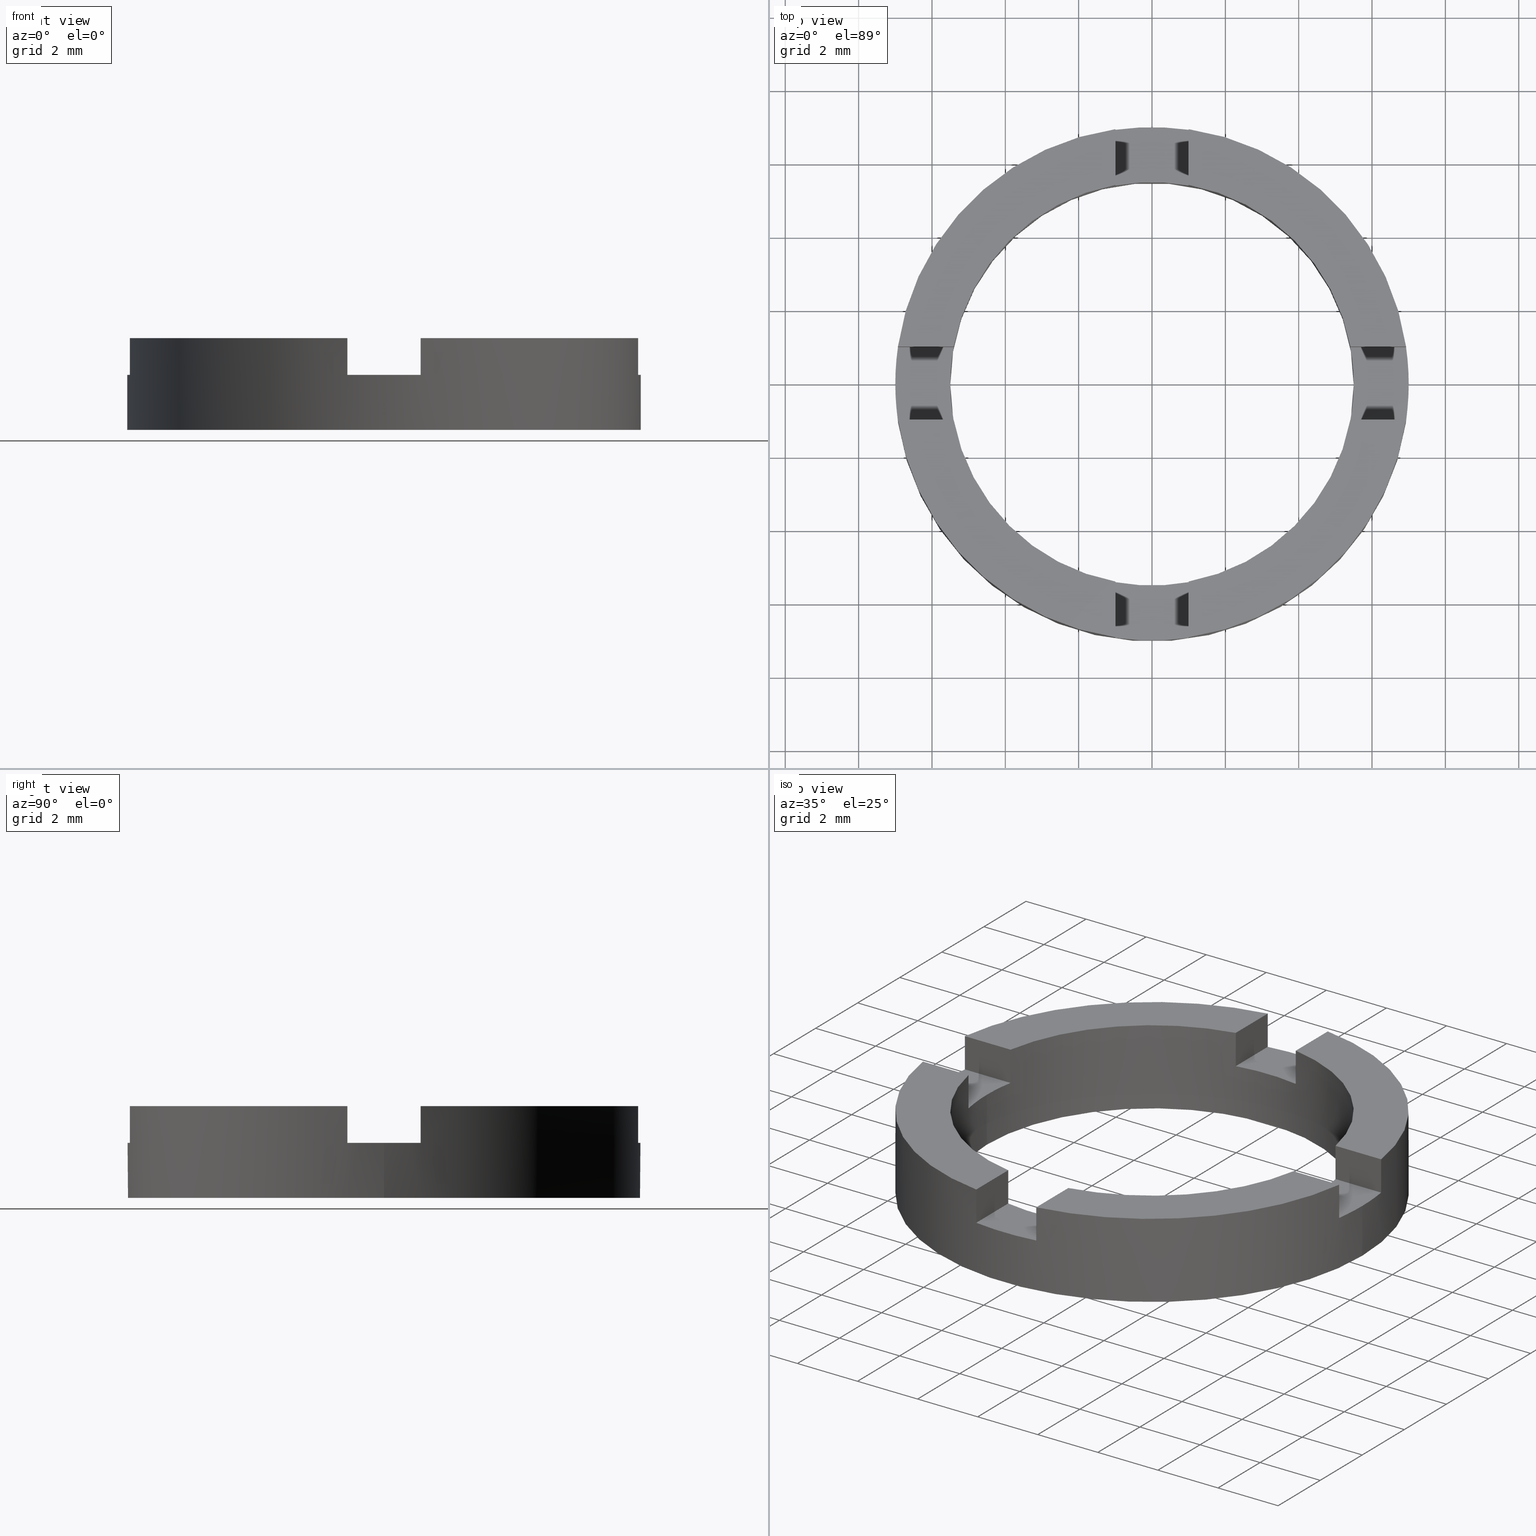
[diagram: canonical four-view strip — front | top / right | iso, engineering-drawing reading convention]
A machine part, canonical four-view strip (front | top / right | iso — engineering-drawing reading convention). The complete STEP part file that produces these views, byte-faithful:
ISO-10303-21;
HEADER;
FILE_DESCRIPTION (( 'STEP AP203' ),
    '1' );
FILE_NAME ('514036.step',
    '2024-12-26T02:31:25',
    ( 'MSI' ),
    ( '' ),
    'SwSTEP 2.0',
    'SolidWorks 2020',
    '' );
FILE_SCHEMA (( 'CONFIG_CONTROL_DESIGN' ));
ENDSEC;

DATA;
#1 = DIRECTION ( 'NONE',  ( 1.000000000000000000, 0.000000000000000000, 0.000000000000000000 ) ) ;
#2 = EDGE_CURVE ( 'NONE', #9, #123, #534, .T. ) ;
#3 = VECTOR ( 'NONE', #378, 1000.000000000000000 ) ;
#4 = LINE ( 'NONE', #207, #532 ) ;
#5 = LINE ( 'NONE', #609, #536 ) ;
#6 = CYLINDRICAL_SURFACE ( 'NONE', #716, 5.500000000000000000 ) ;
#7 = DIRECTION ( 'NONE',  ( 0.000000000000000000, 0.000000000000000000, 1.000000000000000000 ) ) ;
#8 = VECTOR ( 'NONE', #280, 1000.000000000000000 ) ;
#9 = VERTEX_POINT ( 'NONE', #593 ) ;
#10 = ORIENTED_EDGE ( 'NONE', *, *, #418, .T. ) ;
#11 = VERTEX_POINT ( 'NONE', #151 ) ;
#12 = DIRECTION ( 'NONE',  ( 1.000000000000000000, 0.000000000000000000, 0.000000000000000000 ) ) ;
#13 = ORIENTED_EDGE ( 'NONE', *, *, #612, .F. ) ;
#14 = ORIENTED_EDGE ( 'NONE', *, *, #107, .T. ) ;
#15 = DIRECTION ( 'NONE',  ( 0.000000000000000000, 1.000000000000000000, -0.000000000000000000 ) ) ;
#16 = VERTEX_POINT ( 'NONE', #54 ) ;
#17 = LINE ( 'NONE', #722, #8 ) ;
#18 = DIRECTION ( 'NONE',  ( 1.000000000000000000, 0.000000000000000000, 0.000000000000000000 ) ) ;
#19 = ORIENTED_EDGE ( 'NONE', *, *, #2, .F. ) ;
#20 = CIRCLE ( 'NONE', #777, 7.000000000000000000 ) ;
#21 = CARTESIAN_POINT ( 'NONE',  ( 5.408326913195979913, -1.000000000000021538, 2.500000000000000000 ) ) ;
#22 = CARTESIAN_POINT ( 'NONE',  ( 1.000000000000001332, 0.000000000000000000, 1.500000000000000000 ) ) ;
#23 = CIRCLE ( 'NONE', #606, 5.500000000000000000 ) ;
#24 = FACE_OUTER_BOUND ( 'NONE', #392, .T. ) ;
#25 = DIRECTION ( 'NONE',  ( 1.000000000000000000, 0.000000000000000000, 0.000000000000000000 ) ) ;
#26 = ORIENTED_EDGE ( 'NONE', *, *, #167, .T. ) ;
#27 = ORIENTED_EDGE ( 'NONE', *, *, #537, .F. ) ;
#28 = CARTESIAN_POINT ( 'NONE',  ( 0.000000000000000000, 0.000000000000000000, 2.500000000000000000 ) ) ;
#29 = DIRECTION ( 'NONE',  ( 1.000000000000000000, -3.748241796307029727E-15, 0.000000000000000000 ) ) ;
#30 = CARTESIAN_POINT ( 'NONE',  ( 0.000000000000000000, 0.000000000000000000, 1.500000000000000000 ) ) ;
#31 = ORIENTED_EDGE ( 'NONE', *, *, #324, .T. ) ;
#32 = VECTOR ( 'NONE', #368, 1000.000000000000000 ) ;
#33 = LINE ( 'NONE', #149, #284 ) ;
#34 = VECTOR ( 'NONE', #762, 1000.000000000000000 ) ;
#35 = DIRECTION ( 'NONE',  ( -3.732753193842950078E-15, -1.000000000000000000, 0.000000000000000000 ) ) ;
#36 = LINE ( 'NONE', #601, #310 ) ;
#37 = EDGE_CURVE ( 'NONE', #394, #459, #550, .T. ) ;
#38 = FACE_OUTER_BOUND ( 'NONE', #391, .T. ) ;
#39 = VECTOR ( 'NONE', #160, 1000.000000000000000 ) ;
#40 = LINE ( 'NONE', #95, #39 ) ;
#41 = DIRECTION ( 'NONE',  ( -1.000000000000000000, 0.000000000000000000, 0.000000000000000000 ) ) ;
#42 = CARTESIAN_POINT ( 'NONE',  ( 0.000000000000000000, 0.000000000000000000, 1.500000000000000000 ) ) ;
#43 = FACE_BOUND ( 'NONE', #653, .T. ) ;
#44 = CC_DESIGN_APPROVAL ( #286, ( #71 ) ) ;
#45 = CARTESIAN_POINT ( 'NONE',  ( 6.928203230275506108, -1.000000000000027089, 2.500000000000000000 ) ) ;
#46 = EDGE_CURVE ( 'NONE', #114, #11, #17, .T. ) ;
#47 = DATE_TIME_ROLE ( 'creation_date' ) ;
#48 = EDGE_CURVE ( 'NONE', #172, #459, #293, .T. ) ;
#49 = CARTESIAN_POINT ( 'NONE',  ( -5.408326913195986130, -0.9999999999999811262, 1.500000000000000000 ) ) ;
#50 = CARTESIAN_POINT ( 'NONE',  ( -0.9999999999999986677, -5.408326913195983465, 1.500000000000000000 ) ) ;
#51 = AXIS2_PLACEMENT_3D ( 'NONE', #333, #264, #125 ) ;
#52 = CARTESIAN_POINT ( 'NONE',  ( 1.000000000000001332, 0.000000000000000000, 1.500000000000000000 ) ) ;
#53 = DIRECTION ( 'NONE',  ( 1.000000000000000000, -3.732753193842950078E-15, 0.000000000000000000 ) ) ;
#54 = CARTESIAN_POINT ( 'NONE',  ( 5.500000000000000000, 6.735557395310442023E-16, 0.000000000000000000 ) ) ;
#55 = ADVANCED_FACE ( 'NONE', ( #24 ), #81, .T. ) ;
#56 = CARTESIAN_POINT ( 'NONE',  ( 5.500000000000000000, 6.735557395310442023E-16, 1.500000000000000000 ) ) ;
#57 = DIRECTION ( 'NONE',  ( 0.000000000000000000, 0.000000000000000000, 1.000000000000000000 ) ) ;
#58 = AXIS2_PLACEMENT_3D ( 'NONE', #530, #689, #344 ) ;
#59 = PLANE ( 'NONE',  #590 ) ;
#60 = CARTESIAN_POINT ( 'NONE',  ( 0.000000000000000000, 0.000000000000000000, 1.500000000000000000 ) ) ;
#61 = AXIS2_PLACEMENT_3D ( 'NONE', #111, #57, #461 ) ;
#62 = EDGE_CURVE ( 'NONE', #139, #11, #551, .T. ) ;
#63 = CARTESIAN_POINT ( 'NONE',  ( -0.9999999999999986677, 0.000000000000000000, 2.500000000000000000 ) ) ;
#64 = EDGE_CURVE ( 'NONE', #294, #677, #20, .T. ) ;
#65 = CARTESIAN_POINT ( 'NONE',  ( -0.9999999999999986677, 5.408326913195983465, 1.500000000000000000 ) ) ;
#66 = CARTESIAN_POINT ( 'NONE',  ( -5.408326913195980801, 1.000000000000019096, 2.500000000000000000 ) ) ;
#67 = EDGE_CURVE ( 'NONE', #428, #455, #298, .T. ) ;
#68 = DIRECTION ( 'NONE',  ( 0.000000000000000000, 0.000000000000000000, 1.000000000000000000 ) ) ;
#69 = APPLICATION_PROTOCOL_DEFINITION ( 'international standard', 'config_control_design', 1994, #337 ) ;
#70 = CARTESIAN_POINT ( 'NONE',  ( 0.000000000000000000, 0.000000000000000000, 2.500000000000000000 ) ) ;
#71 = PRODUCT_DEFINITION_FORMATION_WITH_SPECIFIED_SOURCE ( '�κ�', '', #769, .NOT_KNOWN. ) ;
#72 = DIRECTION ( 'NONE',  ( 1.000000000000000000, 0.000000000000000000, 0.000000000000000000 ) ) ;
#73 =( LENGTH_UNIT ( ) NAMED_UNIT ( * ) SI_UNIT ( .MILLI., .METRE. ) );
#74 = EDGE_CURVE ( 'NONE', #695, #166, #23, .T. ) ;
#75 = DIRECTION ( 'NONE',  ( -1.000000000000000000, 0.000000000000000000, 0.000000000000000000 ) ) ;
#76 = CARTESIAN_POINT ( 'NONE',  ( 0.000000000000000000, 0.000000000000000000, 2.500000000000000000 ) ) ;
#77 = DIRECTION ( 'NONE',  ( 1.000000000000000000, 0.000000000000000000, 0.000000000000000000 ) ) ;
#78 = AXIS2_PLACEMENT_3D ( 'NONE', #721, #580, #77 ) ;
#79 = EDGE_CURVE ( 'NONE', #266, #677, #33, .T. ) ;
#80 = ADVANCED_FACE ( 'NONE', ( #307 ), #591, .T. ) ;
#81 = PLANE ( 'NONE',  #402 ) ;
#82 = DIRECTION ( 'NONE',  ( 0.000000000000000000, 0.000000000000000000, 1.000000000000000000 ) ) ;
#83 = DIRECTION ( 'NONE',  ( -3.748241796307029727E-15, -1.000000000000000000, 0.000000000000000000 ) ) ;
#84 = CARTESIAN_POINT ( 'NONE',  ( -0.9999999999999986677, -5.408326913195983465, 2.500000000000000000 ) ) ;
#85 = ADVANCED_FACE ( 'NONE', ( #562 ), #407, .F. ) ;
#86 = AXIS2_PLACEMENT_3D ( 'NONE', #60, #170, #552 ) ;
#87 = DIRECTION ( 'NONE',  ( 1.000000000000000000, -5.329070518200751394E-15, 0.000000000000000000 ) ) ;
#88 = DIRECTION ( 'NONE',  ( 1.000000000000000000, 0.000000000000000000, -0.000000000000000000 ) ) ;
#89 = CARTESIAN_POINT ( 'NONE',  ( 1.000000000000001332, -5.408326913195982577, 1.500000000000000000 ) ) ;
#90 = DIRECTION ( 'NONE',  ( 0.000000000000000000, 0.000000000000000000, -1.000000000000000000 ) ) ;
#91 = CARTESIAN_POINT ( 'NONE',  ( 1.000000000000001332, -6.928203230275509661, 1.500000000000000000 ) ) ;
#92 = CARTESIAN_POINT ( 'NONE',  ( 1.000000000000001332, 0.000000000000000000, 2.500000000000000000 ) ) ;
#93 = APPROVAL ( #742, 'δָ��' ) ;
#94 = EDGE_CURVE ( 'NONE', #166, #636, #543, .T. ) ;
#95 = CARTESIAN_POINT ( 'NONE',  ( 1.000000000000001332, 0.000000000000000000, 2.500000000000000000 ) ) ;
#96 = EDGE_CURVE ( 'NONE', #690, #538, #268, .T. ) ;
#97 = ADVANCED_FACE ( 'NONE', ( #309 ), #398, .T. ) ;
#98 = ORIENTED_EDGE ( 'NONE', *, *, #598, .F. ) ;
#99 = CARTESIAN_POINT ( 'NONE',  ( -0.9999999999999986677, -6.928203230275509661, 1.500000000000000000 ) ) ;
#100 = ORIENTED_EDGE ( 'NONE', *, *, #96, .T. ) ;
#101 = ORIENTED_EDGE ( 'NONE', *, *, #351, .F. ) ;
#102 = ORIENTED_EDGE ( 'NONE', *, *, #37, .F. ) ;
#103 = ORIENTED_EDGE ( 'NONE', *, *, #449, .T. ) ;
#104 = CARTESIAN_POINT ( 'NONE',  ( 3.748241796307024994E-15, 0.9999999999999988898, 1.500000000000000000 ) ) ;
#105 = ORIENTED_EDGE ( 'NONE', *, *, #107, .F. ) ;
#106 = ORIENTED_EDGE ( 'NONE', *, *, #289, .F. ) ;
#107 = EDGE_CURVE ( 'NONE', #677, #123, #529, .T. ) ;
#108 = VERTEX_POINT ( 'NONE', #148 ) ;
#109 = ORIENTED_EDGE ( 'NONE', *, *, #702, .T. ) ;
#110 = CARTESIAN_POINT ( 'NONE',  ( 0.000000000000000000, 0.000000000000000000, 2.500000000000000000 ) ) ;
#111 = CARTESIAN_POINT ( 'NONE',  ( 0.000000000000000000, 0.000000000000000000, 2.500000000000000000 ) ) ;
#112 = ORIENTED_EDGE ( 'NONE', *, *, #464, .T. ) ;
#113 = CARTESIAN_POINT ( 'NONE',  ( 0.000000000000000000, 0.000000000000000000, 2.500000000000000000 ) ) ;
#114 = VERTEX_POINT ( 'NONE', #753 ) ;
#115 = ORIENTED_EDGE ( 'NONE', *, *, #62, .T. ) ;
#116 = ORIENTED_EDGE ( 'NONE', *, *, #347, .T. ) ;
#117 = AXIS2_PLACEMENT_3D ( 'NONE', #213, #306, #696 ) ;
#118 = ORIENTED_EDGE ( 'NONE', *, *, #656, .F. ) ;
#119 = CARTESIAN_POINT ( 'NONE',  ( 5.408326913195987018, 0.9999999999999787947, 1.500000000000000000 ) ) ;
#120 = EDGE_CURVE ( 'NONE', #421, #466, #4, .T. ) ;
#121 = EDGE_LOOP ( 'NONE', ( #676, #383, #465, #360, #197, #112 ) ) ;
#122 = ORIENTED_EDGE ( 'NONE', *, *, #600, .T. ) ;
#123 = VERTEX_POINT ( 'NONE', #84 ) ;
#124 = EDGE_LOOP ( 'NONE', ( #198, #159, #100, #370, #101, #673, #625, #189, #443, #631, #646, #374 ) ) ;
#125 = DIRECTION ( 'NONE',  ( 1.000000000000000000, 7.105427357601001859E-15, 0.000000000000000000 ) ) ;
#126 = ORIENTED_EDGE ( 'NONE', *, *, #718, .T. ) ;
#127 = VERTEX_POINT ( 'NONE', #668 ) ;
#128 = CC_DESIGN_APPROVAL ( #225, ( #444 ) ) ;
#129 = DIRECTION ( 'NONE',  ( -0.000000000000000000, -0.000000000000000000, 1.000000000000000000 ) ) ;
#130 = ORIENTED_EDGE ( 'NONE', *, *, #464, .F. ) ;
#131 = DIRECTION ( 'NONE',  ( 0.000000000000000000, 0.000000000000000000, 1.000000000000000000 ) ) ;
#132 = AXIS2_PLACEMENT_3D ( 'NONE', #571, #259, #18 ) ;
#133 = ORIENTED_EDGE ( 'NONE', *, *, #597, .F. ) ;
#134 = PLANE ( 'NONE',  #610 ) ;
#135 = ORIENTED_EDGE ( 'NONE', *, *, #781, .T. ) ;
#136 = DIRECTION ( 'NONE',  ( -0.000000000000000000, 0.000000000000000000, 1.000000000000000000 ) ) ;
#137 = ORIENTED_EDGE ( 'NONE', *, *, #246, .T. ) ;
#138 = ORIENTED_EDGE ( 'NONE', *, *, #347, .F. ) ;
#139 = VERTEX_POINT ( 'NONE', #575 ) ;
#140 = CARTESIAN_POINT ( 'NONE',  ( -0.9999999999999986677, -6.928203230275509661, 2.500000000000000000 ) ) ;
#141 = PERSON_AND_ORGANIZATION_ROLE ( 'design_supplier' ) ;
#142 = AXIS2_PLACEMENT_3D ( 'NONE', #579, #68, #574 ) ;
#143 = CARTESIAN_POINT ( 'NONE',  ( 5.500000000000000000, 6.735557395310442023E-16, 2.500000000000000000 ) ) ;
#144 = DIRECTION ( 'NONE',  ( 1.000000000000000000, 0.000000000000000000, 0.000000000000000000 ) ) ;
#145 = CC_DESIGN_DATE_AND_TIME_ASSIGNMENT ( #499, #47, ( #313 ) ) ;
#146 = CARTESIAN_POINT ( 'NONE',  ( -0.9999999999999986677, 0.000000000000000000, 1.500000000000000000 ) ) ;
#147 = APPROVAL_ROLE ( '' ) ;
#148 = CARTESIAN_POINT ( 'NONE',  ( 7.000000000000000000, 8.572527594031473190E-16, 1.500000000000000000 ) ) ;
#149 = CARTESIAN_POINT ( 'NONE',  ( -0.9999999999999986677, -6.928203230275509661, 1.500000000000000000 ) ) ;
#150 = DIRECTION ( 'NONE',  ( 1.000000000000000000, 0.000000000000000000, -0.000000000000000000 ) ) ;
#151 = CARTESIAN_POINT ( 'NONE',  ( -6.928203230275506108, 1.000000000000024869, 2.500000000000000000 ) ) ;
#152 = CARTESIAN_POINT ( 'NONE',  ( 7.000000000000000000, 8.572527594031473190E-16, 0.000000000000000000 ) ) ;
#153 = AXIS2_PLACEMENT_3D ( 'NONE', #278, #200, #451 ) ;
#154 = EDGE_CURVE ( 'NONE', #684, #294, #5, .T. ) ;
#155 = EDGE_CURVE ( 'NONE', #114, #683, #312, .T. ) ;
#156 = EDGE_LOOP ( 'NONE', ( #639, #389, #643, #367, #648, #118, #365, #649, #633, #130, #698, #179 ) ) ;
#157 = CARTESIAN_POINT ( 'NONE',  ( 5.408326913195979913, -1.000000000000021538, 1.500000000000000000 ) ) ;
#158 = ORIENTED_EDGE ( 'NONE', *, *, #622, .T. ) ;
#159 = ORIENTED_EDGE ( 'NONE', *, *, #168, .F. ) ;
#160 = DIRECTION ( 'NONE',  ( 0.000000000000000000, 1.000000000000000000, -0.000000000000000000 ) ) ;
#161 = VERTEX_POINT ( 'NONE', #276 ) ;
#162 = ORIENTED_EDGE ( 'NONE', *, *, #46, .F. ) ;
#163 = CARTESIAN_POINT ( 'NONE',  ( 0.000000000000000000, 0.000000000000000000, 1.500000000000000000 ) ) ;
#164 = ADVANCED_FACE ( 'NONE', ( #567 ), #441, .T. ) ;
#165 = CC_DESIGN_PERSON_AND_ORGANIZATION_ASSIGNMENT ( #240, #297, ( #444 ) ) ;
#166 = VERTEX_POINT ( 'NONE', #56 ) ;
#167 = EDGE_CURVE ( 'NONE', #455, #358, #40, .T. ) ;
#168 = EDGE_CURVE ( 'NONE', #690, #108, #314, .T. ) ;
#169 = ORIENTED_EDGE ( 'NONE', *, *, #597, .T. ) ;
#170 = DIRECTION ( 'NONE',  ( -0.000000000000000000, 0.000000000000000000, 1.000000000000000000 ) ) ;
#171 = ORIENTED_EDGE ( 'NONE', *, *, #246, .F. ) ;
#172 = VERTEX_POINT ( 'NONE', #89 ) ;
#173 = ORIENTED_EDGE ( 'NONE', *, *, #561, .T. ) ;
#174 = CARTESIAN_POINT ( 'NONE',  ( -5.500000000000000000, 0.000000000000000000, 1.500000000000000000 ) ) ;
#175 =( GEOMETRIC_REPRESENTATION_CONTEXT ( 3 ) GLOBAL_UNCERTAINTY_ASSIGNED_CONTEXT ( ( #547 ) ) GLOBAL_UNIT_ASSIGNED_CONTEXT ( ( #73, #202, #440 ) ) REPRESENTATION_CONTEXT ( 'NONE', 'WORKASPACE' ) );
#176 = ORIENTED_EDGE ( 'NONE', *, *, #418, .F. ) ;
#177 = DIRECTION ( 'NONE',  ( 1.000000000000000000, -3.748241796307028939E-15, 0.000000000000000000 ) ) ;
#178 = VERTEX_POINT ( 'NONE', #152 ) ;
#179 = ORIENTED_EDGE ( 'NONE', *, *, #781, .F. ) ;
#180 = ORIENTED_EDGE ( 'NONE', *, *, #539, .T. ) ;
#181 = DIRECTION ( 'NONE',  ( 1.000000000000000000, 0.000000000000000000, 0.000000000000000000 ) ) ;
#182 = CARTESIAN_POINT ( 'NONE',  ( 0.000000000000000000, 0.000000000000000000, 1.500000000000000000 ) ) ;
#183 = AXIS2_PLACEMENT_3D ( 'NONE', #30, #136, #735 ) ;
#184 = DIRECTION ( 'NONE',  ( 0.000000000000000000, 0.000000000000000000, 1.000000000000000000 ) ) ;
#185 = PLANE ( 'NONE',  #448 ) ;
#186 = CARTESIAN_POINT ( 'NONE',  ( 7.000000000000000000, 8.572527594031473190E-16, 2.500000000000000000 ) ) ;
#187 = ORIENTED_EDGE ( 'NONE', *, *, #231, .T. ) ;
#188 = ORIENTED_EDGE ( 'NONE', *, *, #692, .F. ) ;
#189 = ORIENTED_EDGE ( 'NONE', *, *, #64, .F. ) ;
#190 = AXIS2_PLACEMENT_3D ( 'NONE', #52, #764, #90 ) ;
#191 = ORIENTED_EDGE ( 'NONE', *, *, #67, .T. ) ;
#192 = EDGE_CURVE ( 'NONE', #651, #358, #569, .T. ) ;
#193 = EDGE_CURVE ( 'NONE', #695, #710, #570, .T. ) ;
#194 = DIRECTION ( 'NONE',  ( 0.000000000000000000, -0.000000000000000000, -1.000000000000000000 ) ) ;
#195 = ORIENTED_EDGE ( 'NONE', *, *, #303, .T. ) ;
#196 = SECURITY_CLASSIFICATION_LEVEL ( 'unclassified' ) ;
#197 = ORIENTED_EDGE ( 'NONE', *, *, #598, .T. ) ;
#198 = ORIENTED_EDGE ( 'NONE', *, *, #622, .F. ) ;
#199 = ORIENTED_EDGE ( 'NONE', *, *, #324, .F. ) ;
#200 = DIRECTION ( 'NONE',  ( 0.000000000000000000, 0.000000000000000000, 1.000000000000000000 ) ) ;
#201 = ORIENTED_EDGE ( 'NONE', *, *, #192, .T. ) ;
#202 =( NAMED_UNIT ( * ) PLANE_ANGLE_UNIT ( ) SI_UNIT ( $, .RADIAN. ) );
#203 = ADVANCED_FACE ( 'NONE', ( #316, #43 ), #654, .F. ) ;
#204 = EDGE_CURVE ( 'NONE', #294, #632, #36, .T. ) ;
#205 = DIRECTION ( 'NONE',  ( 1.000000000000000000, 0.000000000000000000, -0.000000000000000000 ) ) ;
#206 = PERSON_AND_ORGANIZATION_ROLE ( 'creator' ) ;
#207 = CARTESIAN_POINT ( 'NONE',  ( -5.408326913195980801, 1.000000000000019096, 1.500000000000000000 ) ) ;
#208 = ADVANCED_FACE ( 'NONE', ( #565 ), #59, .F. ) ;
#209 = CIRCLE ( 'NONE', #526, 7.000000000000000000 ) ;
#210 = LINE ( 'NONE', #186, #508 ) ;
#211 = VECTOR ( 'NONE', #308, 1000.000000000000000 ) ;
#212 = LINE ( 'NONE', #714, #731 ) ;
#213 = CARTESIAN_POINT ( 'NONE',  ( -0.9999999999999986677, 0.000000000000000000, 1.500000000000000000 ) ) ;
#214 = APPROVAL_PERSON_ORGANIZATION ( #251, #286, #147 ) ;
#215 = DIRECTION ( 'NONE',  ( 1.000000000000000000, 0.000000000000000000, 0.000000000000000000 ) ) ;
#216 = FACE_OUTER_BOUND ( 'NONE', #124, .T. ) ;
#217 = ADVANCED_FACE ( 'NONE', ( #38 ), #6, .F. ) ;
#218 = LINE ( 'NONE', #420, #512 ) ;
#219 = VECTOR ( 'NONE', #241, 1000.000000000000000 ) ;
#220 = LOCAL_TIME ( 10, 31, 25.00000000000000000, #226 ) ;
#221 = CARTESIAN_POINT ( 'NONE',  ( 6.928203230275513214, 0.9999999999999729106, 1.500000000000000000 ) ) ;
#222 = LINE ( 'NONE', #49, #219 ) ;
#223 = LOCAL_TIME ( 10, 31, 25.00000000000000000, #754 ) ;
#224 = CIRCLE ( 'NONE', #645, 5.500000000000000000 ) ;
#225 = APPROVAL ( #584, 'δָ��' ) ;
#226 = COORDINATED_UNIVERSAL_TIME_OFFSET ( 8, 0, .AHEAD. ) ;
#227 = FACE_OUTER_BOUND ( 'NONE', #640, .T. ) ;
#228 = CARTESIAN_POINT ( 'NONE',  ( 0.000000000000000000, 0.000000000000000000, 1.500000000000000000 ) ) ;
#229 = AXIS2_PLACEMENT_3D ( 'NONE', #311, #410, #700 ) ;
#230 = VECTOR ( 'NONE', #608, 1000.000000000000000 ) ;
#231 = EDGE_CURVE ( 'NONE', #161, #651, #255, .T. ) ;
#232 = LINE ( 'NONE', #342, #752 ) ;
#233 = CARTESIAN_POINT ( 'NONE',  ( 1.000000000000001332, 5.408326913195982577, 1.500000000000000000 ) ) ;
#234 = LINE ( 'NONE', #63, #236 ) ;
#235 = COORDINATED_UNIVERSAL_TIME_OFFSET ( 8, 0, .AHEAD. ) ;
#236 = VECTOR ( 'NONE', #663, 1000.000000000000000 ) ;
#237 = CALENDAR_DATE ( 2024, 26, 12 ) ;
#238 = FACE_OUTER_BOUND ( 'NONE', #406, .T. ) ;
#239 = LINE ( 'NONE', #157, #498 ) ;
#240 = PERSON_AND_ORGANIZATION ( #416, #494 ) ;
#241 = DIRECTION ( 'NONE',  ( -0.000000000000000000, -0.000000000000000000, 1.000000000000000000 ) ) ;
#242 = LINE ( 'NONE', #104, #477 ) ;
#243 = LINE ( 'NONE', #720, #476 ) ;
#244 = AXIS2_PLACEMENT_3D ( 'NONE', #620, #629, #528 ) ;
#245 = CALENDAR_DATE ( 2024, 26, 12 ) ;
#246 = EDGE_CURVE ( 'NONE', #430, #16, #778, .T. ) ;
#247 = VECTOR ( 'NONE', #291, 1000.000000000000000 ) ;
#248 = DIRECTION ( 'NONE',  ( 1.000000000000000000, 0.000000000000000000, 0.000000000000000000 ) ) ;
#249 = CARTESIAN_POINT ( 'NONE',  ( -0.9999999999999986677, 5.408326913195983465, 1.500000000000000000 ) ) ;
#250 = FACE_OUTER_BOUND ( 'NONE', #304, .T. ) ;
#251 = PERSON_AND_ORGANIZATION ( #416, #494 ) ;
#252 = CARTESIAN_POINT ( 'NONE',  ( 6.928203230275513214, 0.9999999999999729106, 2.500000000000000000 ) ) ;
#253 = LINE ( 'NONE', #697, #515 ) ;
#254 = DATE_AND_TIME ( #256, #479 ) ;
#255 = LINE ( 'NONE', #221, #520 ) ;
#256 = CALENDAR_DATE ( 2024, 26, 12 ) ;
#257 = CIRCLE ( 'NONE', #691, 7.000000000000000000 ) ;
#258 = APPROVAL_DATE_TIME ( #505, #225 ) ;
#259 = DIRECTION ( 'NONE',  ( 0.000000000000000000, -0.000000000000000000, -1.000000000000000000 ) ) ;
#260 = VECTOR ( 'NONE', #546, 1000.000000000000000 ) ;
#261 = CC_DESIGN_APPROVAL ( #93, ( #313 ) ) ;
#262 = AXIS2_PLACEMENT_3D ( 'NONE', #363, #431, #322 ) ;
#263 = PLANE ( 'NONE',  #319 ) ;
#264 = DIRECTION ( 'NONE',  ( 0.000000000000000000, -0.000000000000000000, -1.000000000000000000 ) ) ;
#265 = PERSON_AND_ORGANIZATION_ROLE ( 'design_owner' ) ;
#266 = VERTEX_POINT ( 'NONE', #99 ) ;
#267 = CARTESIAN_POINT ( 'NONE',  ( 0.000000000000000000, 0.000000000000000000, 1.500000000000000000 ) ) ;
#268 = LINE ( 'NONE', #687, #34 ) ;
#269 = DIRECTION ( 'NONE',  ( 0.000000000000000000, 0.000000000000000000, 1.000000000000000000 ) ) ;
#270 = AXIS2_PLACEMENT_3D ( 'NONE', #587, #82, #205 ) ;
#271 = ORIENTED_EDGE ( 'NONE', *, *, #484, .F. ) ;
#272 = DIRECTION ( 'NONE',  ( -0.000000000000000000, -0.000000000000000000, -1.000000000000000000 ) ) ;
#273 = CARTESIAN_POINT ( 'NONE',  ( 5.408326913195987018, 0.9999999999999787947, 2.500000000000000000 ) ) ;
#274 = VECTOR ( 'NONE', #682, 1000.000000000000000 ) ;
#275 = FACE_OUTER_BOUND ( 'NONE', #300, .T. ) ;
#276 = CARTESIAN_POINT ( 'NONE',  ( 6.928203230275513214, 0.9999999999999729106, 1.500000000000000000 ) ) ;
#277 = EDGE_LOOP ( 'NONE', ( #26, #199, #188, #191 ) ) ;
#278 = CARTESIAN_POINT ( 'NONE',  ( 0.000000000000000000, 0.000000000000000000, 2.500000000000000000 ) ) ;
#279 = ORIENTED_EDGE ( 'NONE', *, *, #727, .T. ) ;
#280 = DIRECTION ( 'NONE',  ( -0.000000000000000000, -0.000000000000000000, 1.000000000000000000 ) ) ;
#281 = VECTOR ( 'NONE', #386, 1000.000000000000000 ) ;
#282 = CARTESIAN_POINT ( 'NONE',  ( 3.748241796307024994E-15, 0.9999999999999988898, 2.500000000000000000 ) ) ;
#283 = DIRECTION ( 'NONE',  ( 1.000000000000000000, -3.748241796307028939E-15, 0.000000000000000000 ) ) ;
#284 = VECTOR ( 'NONE', #634, 1000.000000000000000 ) ;
#285 = VECTOR ( 'NONE', #129, 1000.000000000000000 ) ;
#286 = APPROVAL ( #339, 'δָ��' ) ;
#287 = ORIENTED_EDGE ( 'NONE', *, *, #454, .T. ) ;
#288 = AXIS2_PLACEMENT_3D ( 'NONE', #382, #372, #144 ) ;
#289 = EDGE_CURVE ( 'NONE', #683, #657, #253, .T. ) ;
#290 = ORIENTED_EDGE ( 'NONE', *, *, #204, .T. ) ;
#291 = DIRECTION ( 'NONE',  ( -0.000000000000000000, -0.000000000000000000, -1.000000000000000000 ) ) ;
#292 = DIRECTION ( 'NONE',  ( -0.000000000000000000, 0.000000000000000000, 1.000000000000000000 ) ) ;
#293 = LINE ( 'NONE', #335, #3 ) ;
#294 = VERTEX_POINT ( 'NONE', #417 ) ;
#295 = EDGE_LOOP ( 'NONE', ( #271, #122, #115, #463 ) ) ;
#296 = ORIENTED_EDGE ( 'NONE', *, *, #155, .F. ) ;
#297 = PERSON_AND_ORGANIZATION_ROLE ( 'classification_officer' ) ;
#298 = LINE ( 'NONE', #332, #32 ) ;
#299 = DIRECTION ( 'NONE',  ( -0.000000000000000000, -0.000000000000000000, 1.000000000000000000 ) ) ;
#300 = EDGE_LOOP ( 'NONE', ( #708, #302, #102, #621 ) ) ;
#301 = EDGE_CURVE ( 'NONE', #657, #178, #257, .T. ) ;
#302 = ORIENTED_EDGE ( 'NONE', *, *, #702, .F. ) ;
#303 = EDGE_CURVE ( 'NONE', #636, #690, #535, .T. ) ;
#304 = EDGE_LOOP ( 'NONE', ( #460, #162, #103, #362 ) ) ;
#305 = CLOSED_SHELL ( 'NONE', ( #217, #542, #97, #531, #703, #317, #596, #627, #203, #467, #760, #458, #745, #208, #164, #635, #589, #699, #80, #85, #55 ) ) ;
#306 = DIRECTION ( 'NONE',  ( 1.000000000000000000, 0.000000000000000000, 0.000000000000000000 ) ) ;
#307 = FACE_OUTER_BOUND ( 'NONE', #468, .T. ) ;
#308 = DIRECTION ( 'NONE',  ( -0.000000000000000000, -0.000000000000000000, 1.000000000000000000 ) ) ;
#309 = FACE_OUTER_BOUND ( 'NONE', #295, .T. ) ;
#310 = VECTOR ( 'NONE', #53, 1000.000000000000000 ) ;
#311 = CARTESIAN_POINT ( 'NONE',  ( 0.000000000000000000, 0.000000000000000000, 1.500000000000000000 ) ) ;
#312 = CIRCLE ( 'NONE', #183, 7.000000000000000000 ) ;
#313 = PRODUCT_DEFINITION ( 'δ֪', '', #71, #507 ) ;
#314 = CIRCLE ( 'NONE', #346, 7.000000000000000000 ) ;
#315 = DIRECTION ( 'NONE',  ( -0.000000000000000000, -0.000000000000000000, 1.000000000000000000 ) ) ;
#316 = FACE_OUTER_BOUND ( 'NONE', #527, .T. ) ;
#317 = ADVANCED_FACE ( 'NONE', ( #275 ), #320, .T. ) ;
#318 = CARTESIAN_POINT ( 'NONE',  ( -5.500000000000000000, 0.000000000000000000, 0.000000000000000000 ) ) ;
#319 = AXIS2_PLACEMENT_3D ( 'NONE', #328, #12, #712 ) ;
#320 = PLANE ( 'NONE',  #482 ) ;
#321 = DIRECTION ( 'NONE',  ( 1.000000000000000000, -3.732753193842950078E-15, 0.000000000000000000 ) ) ;
#322 = DIRECTION ( 'NONE',  ( 1.000000000000000000, 7.993605777301125513E-15, 0.000000000000000000 ) ) ;
#323 = AXIS2_PLACEMENT_3D ( 'NONE', #445, #272, #724 ) ;
#324 = EDGE_CURVE ( 'NONE', #709, #358, #782, .T. ) ;
#325 = DIRECTION ( 'NONE',  ( 0.000000000000000000, 0.000000000000000000, 1.000000000000000000 ) ) ;
#326 = CARTESIAN_POINT ( 'NONE',  ( 1.000000000000001332, -5.408326913195982577, 2.500000000000000000 ) ) ;
#327 = DIRECTION ( 'NONE',  ( -0.000000000000000000, -0.000000000000000000, -1.000000000000000000 ) ) ;
#328 = CARTESIAN_POINT ( 'NONE',  ( -0.9999999999999986677, 0.000000000000000000, 1.500000000000000000 ) ) ;
#329 = CARTESIAN_POINT ( 'NONE',  ( 3.748241796307024994E-15, 0.9999999999999988898, 1.500000000000000000 ) ) ;
#330 = DIRECTION ( 'NONE',  ( 0.000000000000000000, 0.000000000000000000, 1.000000000000000000 ) ) ;
#331 = DIRECTION ( 'NONE',  ( -0.000000000000000000, 0.000000000000000000, 1.000000000000000000 ) ) ;
#332 = CARTESIAN_POINT ( 'NONE',  ( 1.000000000000001332, 5.408326913195982577, 1.500000000000000000 ) ) ;
#333 = CARTESIAN_POINT ( 'NONE',  ( 0.000000000000000000, 0.000000000000000000, 1.500000000000000000 ) ) ;
#334 = PLANE ( 'NONE',  #758 ) ;
#335 = CARTESIAN_POINT ( 'NONE',  ( 1.000000000000001332, -5.408326913195982577, 1.500000000000000000 ) ) ;
#336 = CARTESIAN_POINT ( 'NONE',  ( -7.000000000000000000, 0.000000000000000000, 0.000000000000000000 ) ) ;
#337 = APPLICATION_CONTEXT ( 'configuration controlled 3d designs of mechanical parts and assemblies' ) ;
#338 = CARTESIAN_POINT ( 'NONE',  ( 0.000000000000000000, 0.000000000000000000, 0.000000000000000000 ) ) ;
#339 = APPROVAL_STATUS ( 'not_yet_approved' ) ;
#340 = PRODUCT_RELATED_PRODUCT_CATEGORY ( 'detail', '', ( #769 ) ) ;
#341 = AXIS2_PLACEMENT_3D ( 'NONE', #666, #194, #72 ) ;
#342 = CARTESIAN_POINT ( 'NONE',  ( -0.9999999999999986677, 0.000000000000000000, 1.500000000000000000 ) ) ;
#343 = APPROVAL_ROLE ( '' ) ;
#344 = DIRECTION ( 'NONE',  ( 1.000000000000000000, 0.000000000000000000, 0.000000000000000000 ) ) ;
#345 = DIRECTION ( 'NONE',  ( -3.732753193842950078E-15, -1.000000000000000000, 0.000000000000000000 ) ) ;
#346 = AXIS2_PLACEMENT_3D ( 'NONE', #228, #349, #414 ) ;
#347 = EDGE_CURVE ( 'NONE', #710, #651, #736, .T. ) ;
#348 = CARTESIAN_POINT ( 'NONE',  ( 3.748241796307024994E-15, 0.9999999999999988898, 2.500000000000000000 ) ) ;
#349 = DIRECTION ( 'NONE',  ( -0.000000000000000000, 0.000000000000000000, 1.000000000000000000 ) ) ;
#350 = CARTESIAN_POINT ( 'NONE',  ( 0.000000000000000000, 0.000000000000000000, 2.500000000000000000 ) ) ;
#351 = EDGE_CURVE ( 'NONE', #437, #394, #485, .T. ) ;
#352 = DIRECTION ( 'NONE',  ( 1.000000000000000000, -3.748241796307028939E-15, 0.000000000000000000 ) ) ;
#353 = AXIS2_PLACEMENT_3D ( 'NONE', #76, #395, #41 ) ;
#354 = CARTESIAN_POINT ( 'NONE',  ( 5.408326913195987018, 0.9999999999999787947, 1.500000000000000000 ) ) ;
#355 = DIRECTION ( 'NONE',  ( 1.000000000000000000, 0.000000000000000000, 0.000000000000000000 ) ) ;
#356 = CARTESIAN_POINT ( 'NONE',  ( -5.408326913195987018, -0.9999999999999813483, 1.500000000000000000 ) ) ;
#357 = DIRECTION ( 'NONE',  ( 1.000000000000000000, -3.732753193842950078E-15, 0.000000000000000000 ) ) ;
#358 = VERTEX_POINT ( 'NONE', #766 ) ;
#359 = AXIS2_PLACEMENT_3D ( 'NONE', #513, #576, #581 ) ;
#360 = ORIENTED_EDGE ( 'NONE', *, *, #780, .T. ) ;
#361 = ORIENTED_EDGE ( 'NONE', *, *, #204, .F. ) ;
#362 = ORIENTED_EDGE ( 'NONE', *, *, #120, .T. ) ;
#363 = CARTESIAN_POINT ( 'NONE',  ( 0.000000000000000000, 0.000000000000000000, 1.500000000000000000 ) ) ;
#364 = CIRCLE ( 'NONE', #595, 7.000000000000000000 ) ;
#365 = ORIENTED_EDGE ( 'NONE', *, *, #680, .T. ) ;
#366 = FACE_OUTER_BOUND ( 'NONE', #672, .T. ) ;
#367 = ORIENTED_EDGE ( 'NONE', *, *, #665, .T. ) ;
#368 = DIRECTION ( 'NONE',  ( -0.000000000000000000, -0.000000000000000000, 1.000000000000000000 ) ) ;
#369 = ORIENTED_EDGE ( 'NONE', *, *, #612, .T. ) ;
#370 = ORIENTED_EDGE ( 'NONE', *, *, #376, .F. ) ;
#371 = CARTESIAN_POINT ( 'NONE',  ( -5.408326913195986130, -0.9999999999999811262, 2.500000000000000000 ) ) ;
#372 = DIRECTION ( 'NONE',  ( 0.000000000000000000, 0.000000000000000000, 1.000000000000000000 ) ) ;
#373 = AXIS2_PLACEMENT_3D ( 'NONE', #329, #614, #493 ) ;
#374 = ORIENTED_EDGE ( 'NONE', *, *, #301, .T. ) ;
#375 = EDGE_CURVE ( 'NONE', #108, #161, #739, .T. ) ;
#376 = EDGE_CURVE ( 'NONE', #394, #538, #504, .T. ) ;
#377 = ORIENTED_EDGE ( 'NONE', *, *, #656, .T. ) ;
#378 = DIRECTION ( 'NONE',  ( -0.000000000000000000, -0.000000000000000000, 1.000000000000000000 ) ) ;
#379 = ORIENTED_EDGE ( 'NONE', *, *, #46, .T. ) ;
#380 = ORIENTED_EDGE ( 'NONE', *, *, #168, .T. ) ;
#381 = CARTESIAN_POINT ( 'NONE',  ( -7.000000000000000000, 0.000000000000000000, 1.500000000000000000 ) ) ;
#382 = CARTESIAN_POINT ( 'NONE',  ( 0.000000000000000000, 0.000000000000000000, 0.000000000000000000 ) ) ;
#383 = ORIENTED_EDGE ( 'NONE', *, *, #155, .T. ) ;
#384 = ORIENTED_EDGE ( 'NONE', *, *, #658, .T. ) ;
#385 = VECTOR ( 'NONE', #283, 1000.000000000000000 ) ;
#386 = DIRECTION ( 'NONE',  ( 0.000000000000000000, 1.000000000000000000, -0.000000000000000000 ) ) ;
#387 = ORIENTED_EDGE ( 'NONE', *, *, #301, .F. ) ;
#388 = CIRCLE ( 'NONE', #359, 5.500000000000000000 ) ;
#389 = ORIENTED_EDGE ( 'NONE', *, *, #74, .F. ) ;
#390 = DIRECTION ( 'NONE',  ( 0.000000000000000000, 0.000000000000000000, 1.000000000000000000 ) ) ;
#391 = EDGE_LOOP ( 'NONE', ( #435, #173, #171, #409, #98, #544, #169, #19, #13, #545, #109, #176 ) ) ;
#392 = EDGE_LOOP ( 'NONE', ( #27, #377, #641, #279 ) ) ;
#393 = VERTEX_POINT ( 'NONE', #174 ) ;
#394 = VERTEX_POINT ( 'NONE', #471 ) ;
#395 = DIRECTION ( 'NONE',  ( -0.000000000000000000, -0.000000000000000000, -1.000000000000000000 ) ) ;
#396 = APPLICATION_PROTOCOL_DEFINITION ( 'international standard', 'config_control_design', 1994, #733 ) ;
#397 = MANIFOLD_SOLID_BREP ( '�г�-����1', #305 ) ;
#398 = PLANE ( 'NONE',  #244 ) ;
#399 = EDGE_LOOP ( 'NONE', ( #425, #679, #628, #655 ) ) ;
#400 = LINE ( 'NONE', #667, #385 ) ;
#401 = VERTEX_POINT ( 'NONE', #249 ) ;
#402 = AXIS2_PLACEMENT_3D ( 'NONE', #514, #450, #582 ) ;
#403 = ORIENTED_EDGE ( 'NONE', *, *, #193, .F. ) ;
#404 = EDGE_CURVE ( 'NONE', #688, #632, #222, .T. ) ;
#405 = ORIENTED_EDGE ( 'NONE', *, *, #79, .F. ) ;
#406 = EDGE_LOOP ( 'NONE', ( #439, #650, #442, #369 ) ) ;
#407 = PLANE ( 'NONE',  #190 ) ;
#408 = CARTESIAN_POINT ( 'NONE',  ( 0.000000000000000000, 0.000000000000000000, 0.000000000000000000 ) ) ;
#409 = ORIENTED_EDGE ( 'NONE', *, *, #613, .F. ) ;
#410 = DIRECTION ( 'NONE',  ( -0.000000000000000000, 0.000000000000000000, 1.000000000000000000 ) ) ;
#411 = AXIS2_PLACEMENT_3D ( 'NONE', #408, #540, #215 ) ;
#412 = EDGE_CURVE ( 'NONE', #266, #437, #761, .T. ) ;
#413 = EDGE_CURVE ( 'NONE', #437, #172, #746, .T. ) ;
#414 = DIRECTION ( 'NONE',  ( 1.000000000000000000, 0.000000000000000000, 0.000000000000000000 ) ) ;
#415 = DIRECTION ( 'NONE',  ( 1.000000000000000000, -3.748241796307028939E-15, 0.000000000000000000 ) ) ;
#416 = PERSON ( 'δָ��', 'δָ��', 'δָ��', ('δָ��'), ('δָ��'), ('δָ��') ) ;
#417 = CARTESIAN_POINT ( 'NONE',  ( -6.928203230275513214, -0.9999999999999754641, 2.500000000000000000 ) ) ;
#418 = EDGE_CURVE ( 'NONE', #636, #644, #239, .T. ) ;
#419 = DIRECTION ( 'NONE',  ( -0.000000000000000000, -0.000000000000000000, -1.000000000000000000 ) ) ;
#420 = CARTESIAN_POINT ( 'NONE',  ( -0.9999999999999986677, 6.928203230275509661, 1.500000000000000000 ) ) ;
#421 = VERTEX_POINT ( 'NONE', #701 ) ;
#422 = CC_DESIGN_PERSON_AND_ORGANIZATION_ASSIGNMENT ( #518, #265, ( #769 ) ) ;
#423 = CARTESIAN_POINT ( 'NONE',  ( 1.000000000000001332, 5.408326913195982577, 2.500000000000000000 ) ) ;
#424 = AXIS2_PLACEMENT_3D ( 'NONE', #163, #592, #355 ) ;
#425 = ORIENTED_EDGE ( 'NONE', *, *, #37, .T. ) ;
#426 = DIRECTION ( 'NONE',  ( 1.000000000000000000, -3.732753193842950078E-15, 0.000000000000000000 ) ) ;
#427 = EDGE_LOOP ( 'NONE', ( #105, #405, #180, #706 ) ) ;
#428 = VERTEX_POINT ( 'NONE', #233 ) ;
#429 = EDGE_LOOP ( 'NONE', ( #138, #403, #126, #187 ) ) ;
#430 = VERTEX_POINT ( 'NONE', #318 ) ;
#431 = DIRECTION ( 'NONE',  ( 0.000000000000000000, -0.000000000000000000, -1.000000000000000000 ) ) ;
#432 = PLANE ( 'NONE',  #572 ) ;
#433 = ORIENTED_EDGE ( 'NONE', *, *, #586, .T. ) ;
#434 = AXIS2_PLACEMENT_3D ( 'NONE', #522, #269, #25 ) ;
#435 = ORIENTED_EDGE ( 'NONE', *, *, #94, .F. ) ;
#436 = DIRECTION ( 'NONE',  ( 1.000000000000000000, 0.000000000000000000, 0.000000000000000000 ) ) ;
#437 = VERTEX_POINT ( 'NONE', #599 ) ;
#438 = CARTESIAN_POINT ( 'NONE',  ( 0.000000000000000000, 0.000000000000000000, 1.500000000000000000 ) ) ;
#439 = ORIENTED_EDGE ( 'NONE', *, *, #539, .F. ) ;
#440 =( NAMED_UNIT ( * ) SI_UNIT ( $, .STERADIAN. ) SOLID_ANGLE_UNIT ( ) );
#441 = PLANE ( 'NONE',  #229 ) ;
#442 = ORIENTED_EDGE ( 'NONE', *, *, #413, .T. ) ;
#443 = ORIENTED_EDGE ( 'NONE', *, *, #154, .F. ) ;
#444 = SECURITY_CLASSIFICATION ( '', '', #196 ) ;
#445 = CARTESIAN_POINT ( 'NONE',  ( 0.000000000000000000, 0.000000000000000000, 2.500000000000000000 ) ) ;
#446 = DIRECTION ( 'NONE',  ( 1.000000000000000000, 0.000000000000000000, 0.000000000000000000 ) ) ;
#447 = VERTEX_POINT ( 'NONE', #704 ) ;
#448 = AXIS2_PLACEMENT_3D ( 'NONE', #267, #331, #436 ) ;
#449 = EDGE_CURVE ( 'NONE', #114, #421, #242, .T. ) ;
#450 = DIRECTION ( 'NONE',  ( -0.000000000000000000, 0.000000000000000000, 1.000000000000000000 ) ) ;
#451 = DIRECTION ( 'NONE',  ( 1.000000000000000000, 0.000000000000000000, 0.000000000000000000 ) ) ;
#452 = DIRECTION ( 'NONE',  ( 0.000000000000000000, 0.000000000000000000, -1.000000000000000000 ) ) ;
#453 = CARTESIAN_POINT ( 'NONE',  ( -0.9999999999999986677, 0.000000000000000000, 2.500000000000000000 ) ) ;
#454 = EDGE_CURVE ( 'NONE', #644, #538, #757, .T. ) ;
#455 = VERTEX_POINT ( 'NONE', #423 ) ;
#456 = ORIENTED_EDGE ( 'NONE', *, *, #96, .F. ) ;
#457 = ORIENTED_EDGE ( 'NONE', *, *, #600, .F. ) ;
#458 = ADVANCED_FACE ( 'NONE', ( #238 ), #490, .T. ) ;
#459 = VERTEX_POINT ( 'NONE', #326 ) ;
#460 = ORIENTED_EDGE ( 'NONE', *, *, #624, .F. ) ;
#461 = DIRECTION ( 'NONE',  ( 1.000000000000000000, 0.000000000000000000, 0.000000000000000000 ) ) ;
#462 = PRODUCT_DEFINITION_SHAPE ( 'NONE', 'NONE',  #313 ) ;
#463 = ORIENTED_EDGE ( 'NONE', *, *, #624, .T. ) ;
#464 = EDGE_CURVE ( 'NONE', #393, #421, #744, .T. ) ;
#465 = ORIENTED_EDGE ( 'NONE', *, *, #669, .T. ) ;
#466 = VERTEX_POINT ( 'NONE', #66 ) ;
#467 = ADVANCED_FACE ( 'NONE', ( #500 ), #263, .T. ) ;
#468 = EDGE_LOOP ( 'NONE', ( #457, #705, #623, #384 ) ) ;
#469 = CARTESIAN_POINT ( 'NONE',  ( 1.000000000000001332, 6.928203230275509661, 1.500000000000000000 ) ) ;
#470 = ORIENTED_EDGE ( 'NONE', *, *, #404, .F. ) ;
#471 = CARTESIAN_POINT ( 'NONE',  ( 1.000000000000001332, -6.928203230275509661, 2.500000000000000000 ) ) ;
#472 = AXIS2_PLACEMENT_3D ( 'NONE', #662, #568, #150 ) ;
#473 = LINE ( 'NONE', #146, #506 ) ;
#474 = CIRCLE ( 'NONE', #678, 7.000000000000000000 ) ;
#475 = DIRECTION ( 'NONE',  ( -0.000000000000000000, -0.000000000000000000, -1.000000000000000000 ) ) ;
#476 = VECTOR ( 'NONE', #583, 1000.000000000000000 ) ;
#477 = VECTOR ( 'NONE', #352, 1000.000000000000000 ) ;
#478 = CC_DESIGN_PERSON_AND_ORGANIZATION_ASSIGNMENT ( #502, #206, ( #71 ) ) ;
#479 = LOCAL_TIME ( 10, 31, 25.00000000000000000, #521 ) ;
#480 = FACE_OUTER_BOUND ( 'NONE', #121, .T. ) ;
#481 = DIRECTION ( 'NONE',  ( -1.000000000000000000, 0.000000000000000000, 0.000000000000000000 ) ) ;
#482 = AXIS2_PLACEMENT_3D ( 'NONE', #350, #660, #88 ) ;
#483 = CIRCLE ( 'NONE', #341, 5.500000000000000000 ) ;
#484 = EDGE_CURVE ( 'NONE', #447, #466, #726, .T. ) ;
#485 = LINE ( 'NONE', #91, #211 ) ;
#486 = PERSON_AND_ORGANIZATION ( #416, #494 ) ;
#487 = FACE_OUTER_BOUND ( 'NONE', #553, .T. ) ;
#488 = PERSON_AND_ORGANIZATION ( #416, #494 ) ;
#489 = VECTOR ( 'NONE', #357, 1000.000000000000000 ) ;
#490 = PLANE ( 'NONE',  #559 ) ;
#491 = FACE_OUTER_BOUND ( 'NONE', #399, .T. ) ;
#492 = CYLINDRICAL_SURFACE ( 'NONE', #353, 7.000000000000000000 ) ;
#493 = DIRECTION ( 'NONE',  ( 1.000000000000000000, -3.748241796307029727E-15, 0.000000000000000000 ) ) ;
#494 = ORGANIZATION ( 'δָ��', 'δָ��', '' ) ;
#495 = APPROVAL_DATE_TIME ( #254, #286 ) ;
#496 = CC_DESIGN_PERSON_AND_ORGANIZATION_ASSIGNMENT ( #486, #141, ( #71 ) ) ;
#497 = VECTOR ( 'NONE', #642, 1000.000000000000000 ) ;
#498 = VECTOR ( 'NONE', #637, 1000.000000000000000 ) ;
#499 = DATE_AND_TIME ( #779, #220 ) ;
#500 = FACE_OUTER_BOUND ( 'NONE', #427, .T. ) ;
#501 = CARTESIAN_POINT ( 'NONE',  ( 5.408326913195979913, -1.000000000000021538, 1.500000000000000000 ) ) ;
#502 = PERSON_AND_ORGANIZATION ( #416, #494 ) ;
#503 = DATE_TIME_ROLE ( 'classification_date' ) ;
#504 = CIRCLE ( 'NONE', #61, 7.000000000000000000 ) ;
#505 = DATE_AND_TIME ( #237, #223 ) ;
#506 = VECTOR ( 'NONE', #617, 1000.000000000000000 ) ;
#507 = DESIGN_CONTEXT ( 'detailed design', #733, 'design' ) ;
#508 = VECTOR ( 'NONE', #661, 1000.000000000000000 ) ;
#509 = CYLINDRICAL_SURFACE ( 'NONE', #577, 5.500000000000000000 ) ;
#510 = DIRECTION ( 'NONE',  ( -0.000000000000000000, -0.000000000000000000, 1.000000000000000000 ) ) ;
#511 = AXIS2_PLACEMENT_3D ( 'NONE', #525, #330, #664 ) ;
#512 = VECTOR ( 'NONE', #510, 1000.000000000000000 ) ;
#513 = CARTESIAN_POINT ( 'NONE',  ( 0.000000000000000000, 0.000000000000000000, 2.500000000000000000 ) ) ;
#514 = CARTESIAN_POINT ( 'NONE',  ( 0.000000000000000000, 0.000000000000000000, 1.500000000000000000 ) ) ;
#515 = VECTOR ( 'NONE', #475, 1000.000000000000000 ) ;
#516 = LOCAL_TIME ( 10, 31, 25.00000000000000000, #756 ) ;
#517 = CARTESIAN_POINT ( 'NONE',  ( -3.732753193842954812E-15, -1.000000000000001332, 1.500000000000000000 ) ) ;
#518 = PERSON_AND_ORGANIZATION ( #416, #494 ) ;
#519 = CARTESIAN_POINT ( 'NONE',  ( 1.000000000000001332, 6.928203230275509661, 1.500000000000000000 ) ) ;
#520 = VECTOR ( 'NONE', #315, 1000.000000000000000 ) ;
#521 = COORDINATED_UNIVERSAL_TIME_OFFSET ( 8, 0, .AHEAD. ) ;
#522 = CARTESIAN_POINT ( 'NONE',  ( 0.000000000000000000, 0.000000000000000000, 2.500000000000000000 ) ) ;
#523 = CC_DESIGN_SECURITY_CLASSIFICATION ( #444, ( #71 ) ) ;
#524 = PLANE ( 'NONE',  #270 ) ;
#525 = CARTESIAN_POINT ( 'NONE',  ( 0.000000000000000000, 0.000000000000000000, 2.500000000000000000 ) ) ;
#526 = AXIS2_PLACEMENT_3D ( 'NONE', #338, #390, #732 ) ;
#527 = EDGE_LOOP ( 'NONE', ( #387, #693 ) ) ;
#528 = DIRECTION ( 'NONE',  ( 1.000000000000000000, 0.000000000000000000, -0.000000000000000000 ) ) ;
#529 = LINE ( 'NONE', #453, #274 ) ;
#530 = CARTESIAN_POINT ( 'NONE',  ( 0.000000000000000000, 0.000000000000000000, 1.500000000000000000 ) ) ;
#531 = ADVANCED_FACE ( 'NONE', ( #227 ), #524, .T. ) ;
#532 = VECTOR ( 'NONE', #299, 1000.000000000000000 ) ;
#533 = VECTOR ( 'NONE', #564, 1000.000000000000000 ) ;
#534 = LINE ( 'NONE', #50, #285 ) ;
#535 = LINE ( 'NONE', #775, #260 ) ;
#536 = VECTOR ( 'NONE', #671, 1000.000000000000000 ) ;
#537 = EDGE_CURVE ( 'NONE', #401, #127, #473, .T. ) ;
#538 = VERTEX_POINT ( 'NONE', #45 ) ;
#539 = EDGE_CURVE ( 'NONE', #266, #9, #232, .T. ) ;
#540 = DIRECTION ( 'NONE',  ( 0.000000000000000000, 0.000000000000000000, 1.000000000000000000 ) ) ;
#541 = ORIENTED_EDGE ( 'NONE', *, *, #62, .F. ) ;
#542 = ADVANCED_FACE ( 'NONE', ( #734 ), #492, .T. ) ;
#543 = CIRCLE ( 'NONE', #58, 5.500000000000000000 ) ;
#544 = ORIENTED_EDGE ( 'NONE', *, *, #404, .T. ) ;
#545 = ORIENTED_EDGE ( 'NONE', *, *, #48, .T. ) ;
#546 = DIRECTION ( 'NONE',  ( 1.000000000000000000, -3.732753193842950078E-15, 0.000000000000000000 ) ) ;
#547 = UNCERTAINTY_MEASURE_WITH_UNIT (LENGTH_MEASURE( 1.000000000000000082E-05 ), #73, 'distance_accuracy_value', 'NONE');
#548 = ORIENTED_EDGE ( 'NONE', *, *, #64, .T. ) ;
#549 = EDGE_LOOP ( 'NONE', ( #287, #456, #638, #10 ) ) ;
#550 = LINE ( 'NONE', #92, #281 ) ;
#551 = CIRCLE ( 'NONE', #434, 7.000000000000000000 ) ;
#552 = DIRECTION ( 'NONE',  ( 1.000000000000000000, 0.000000000000000000, 0.000000000000000000 ) ) ;
#553 = EDGE_LOOP ( 'NONE', ( #290, #470, #686, #630 ) ) ;
#554 = ORIENTED_EDGE ( 'NONE', *, *, #375, .F. ) ;
#555 = ORIENTED_EDGE ( 'NONE', *, *, #727, .F. ) ;
#556 = ORIENTED_EDGE ( 'NONE', *, *, #192, .F. ) ;
#557 = CARTESIAN_POINT ( 'NONE',  ( 0.000000000000000000, 0.000000000000000000, 0.000000000000000000 ) ) ;
#558 = ORIENTED_EDGE ( 'NONE', *, *, #167, .F. ) ;
#559 = AXIS2_PLACEMENT_3D ( 'NONE', #182, #604, #181 ) ;
#560 = ORIENTED_EDGE ( 'NONE', *, *, #718, .F. ) ;
#561 = EDGE_CURVE ( 'NONE', #166, #16, #723, .T. ) ;
#562 = FACE_OUTER_BOUND ( 'NONE', #277, .T. ) ;
#563 = VECTOR ( 'NONE', #659, 1000.000000000000000 ) ;
#564 = DIRECTION ( 'NONE',  ( -0.000000000000000000, -0.000000000000000000, 1.000000000000000000 ) ) ;
#565 = FACE_OUTER_BOUND ( 'NONE', #549, .T. ) ;
#566 = PLANE ( 'NONE',  #373 ) ;
#567 = FACE_OUTER_BOUND ( 'NONE', #685, .T. ) ;
#568 = DIRECTION ( 'NONE',  ( 0.000000000000000000, 0.000000000000000000, 1.000000000000000000 ) ) ;
#569 = CIRCLE ( 'NONE', #585, 7.000000000000000000 ) ;
#570 = LINE ( 'NONE', #354, #563 ) ;
#571 = CARTESIAN_POINT ( 'NONE',  ( 0.000000000000000000, 0.000000000000000000, 1.500000000000000000 ) ) ;
#572 = AXIS2_PLACEMENT_3D ( 'NONE', #725, #83, #29 ) ;
#573 = CARTESIAN_POINT ( 'NONE',  ( 0.000000000000000000, 0.000000000000000000, 1.500000000000000000 ) ) ;
#574 = DIRECTION ( 'NONE',  ( 1.000000000000000000, 0.000000000000000000, 0.000000000000000000 ) ) ;
#575 = CARTESIAN_POINT ( 'NONE',  ( -0.9999999999999986677, 6.928203230275509661, 2.500000000000000000 ) ) ;
#576 = DIRECTION ( 'NONE',  ( 0.000000000000000000, 0.000000000000000000, 1.000000000000000000 ) ) ;
#577 = AXIS2_PLACEMENT_3D ( 'NONE', #28, #327, #75 ) ;
#578 = DIRECTION ( 'NONE',  ( 0.000000000000000000, -0.000000000000000000, -1.000000000000000000 ) ) ;
#579 = CARTESIAN_POINT ( 'NONE',  ( 0.000000000000000000, 0.000000000000000000, 2.500000000000000000 ) ) ;
#580 = DIRECTION ( 'NONE',  ( 0.000000000000000000, 0.000000000000000000, 1.000000000000000000 ) ) ;
#581 = DIRECTION ( 'NONE',  ( 1.000000000000000000, 0.000000000000000000, 0.000000000000000000 ) ) ;
#582 = DIRECTION ( 'NONE',  ( 1.000000000000000000, 0.000000000000000000, 0.000000000000000000 ) ) ;
#583 = DIRECTION ( 'NONE',  ( -0.000000000000000000, -0.000000000000000000, -1.000000000000000000 ) ) ;
#584 = APPROVAL_STATUS ( 'not_yet_approved' ) ;
#585 = AXIS2_PLACEMENT_3D ( 'NONE', #110, #325, #248 ) ;
#586 = EDGE_CURVE ( 'NONE', #178, #657, #209, .T. ) ;
#587 = CARTESIAN_POINT ( 'NONE',  ( 0.000000000000000000, 0.000000000000000000, 2.500000000000000000 ) ) ;
#588 = CARTESIAN_POINT ( 'NONE',  ( -3.732753193842954812E-15, -1.000000000000001332, 1.500000000000000000 ) ) ;
#589 = ADVANCED_FACE ( 'NONE', ( #487 ), #134, .F. ) ;
#590 = AXIS2_PLACEMENT_3D ( 'NONE', #652, #345, #321 ) ;
#591 = PLANE ( 'NONE',  #117 ) ;
#592 = DIRECTION ( 'NONE',  ( -0.000000000000000000, 0.000000000000000000, 1.000000000000000000 ) ) ;
#593 = CARTESIAN_POINT ( 'NONE',  ( -0.9999999999999986677, -5.408326913195983465, 1.500000000000000000 ) ) ;
#594 = CC_DESIGN_DATE_AND_TIME_ASSIGNMENT ( #749, #503, ( #444 ) ) ;
#595 = AXIS2_PLACEMENT_3D ( 'NONE', #42, #292, #446 ) ;
#596 = ADVANCED_FACE ( 'NONE', ( #216 ), #743, .T. ) ;
#597 = EDGE_CURVE ( 'NONE', #632, #123, #224, .T. ) ;
#598 = EDGE_CURVE ( 'NONE', #688, #393, #748, .T. ) ;
#599 = CARTESIAN_POINT ( 'NONE',  ( 1.000000000000001332, -6.928203230275509661, 1.500000000000000000 ) ) ;
#600 = EDGE_CURVE ( 'NONE', #447, #139, #234, .T. ) ;
#601 = CARTESIAN_POINT ( 'NONE',  ( -3.732753193842954812E-15, -1.000000000000001332, 2.500000000000000000 ) ) ;
#602 = CARTESIAN_POINT ( 'NONE',  ( 1.000000000000001332, 0.000000000000000000, 1.500000000000000000 ) ) ;
#603 = CARTESIAN_POINT ( 'NONE',  ( -6.928203230275513214, -0.9999999999999754641, 1.500000000000000000 ) ) ;
#604 = DIRECTION ( 'NONE',  ( -0.000000000000000000, 0.000000000000000000, 1.000000000000000000 ) ) ;
#605 = DIRECTION ( 'NONE',  ( -0.000000000000000000, 0.000000000000000000, 1.000000000000000000 ) ) ;
#606 = AXIS2_PLACEMENT_3D ( 'NONE', #438, #578, #87 ) ;
#607 = DIRECTION ( 'NONE',  ( 1.000000000000000000, 0.000000000000000000, 0.000000000000000000 ) ) ;
#608 = DIRECTION ( 'NONE',  ( 1.000000000000000000, -3.732753193842950078E-15, 0.000000000000000000 ) ) ;
#609 = CARTESIAN_POINT ( 'NONE',  ( -6.928203230275513214, -0.9999999999999754641, 1.500000000000000000 ) ) ;
#610 = AXIS2_PLACEMENT_3D ( 'NONE', #517, #35, #426 ) ;
#611 = DIRECTION ( 'NONE',  ( 1.000000000000000000, 0.000000000000000000, 0.000000000000000000 ) ) ;
#612 = EDGE_CURVE ( 'NONE', #172, #9, #483, .T. ) ;
#613 = EDGE_CURVE ( 'NONE', #393, #430, #243, .T. ) ;
#614 = DIRECTION ( 'NONE',  ( -3.748241796307029727E-15, -1.000000000000000000, 0.000000000000000000 ) ) ;
#615 = DIRECTION ( 'NONE',  ( 1.000000000000000000, 0.000000000000000000, 0.000000000000000000 ) ) ;
#616 = ORIENTED_EDGE ( 'NONE', *, *, #665, .F. ) ;
#617 = DIRECTION ( 'NONE',  ( 0.000000000000000000, 1.000000000000000000, -0.000000000000000000 ) ) ;
#618 = MECHANICAL_CONTEXT ( 'NONE', #337, 'mechanical' ) ;
#619 = ORIENTED_EDGE ( 'NONE', *, *, #231, .F. ) ;
#620 = CARTESIAN_POINT ( 'NONE',  ( 0.000000000000000000, 0.000000000000000000, 2.500000000000000000 ) ) ;
#621 = ORIENTED_EDGE ( 'NONE', *, *, #376, .T. ) ;
#622 = EDGE_CURVE ( 'NONE', #108, #178, #210, .T. ) ;
#623 = ORIENTED_EDGE ( 'NONE', *, *, #537, .T. ) ;
#624 = EDGE_CURVE ( 'NONE', #11, #466, #755, .T. ) ;
#625 = ORIENTED_EDGE ( 'NONE', *, *, #79, .T. ) ;
#626 = FACE_OUTER_BOUND ( 'NONE', #429, .T. ) ;
#627 = ADVANCED_FACE ( 'NONE', ( #737 ), #509, .F. ) ;
#628 = ORIENTED_EDGE ( 'NONE', *, *, #413, .F. ) ;
#629 = DIRECTION ( 'NONE',  ( 0.000000000000000000, 0.000000000000000000, 1.000000000000000000 ) ) ;
#630 = ORIENTED_EDGE ( 'NONE', *, *, #154, .T. ) ;
#631 = ORIENTED_EDGE ( 'NONE', *, *, #669, .F. ) ;
#632 = VERTEX_POINT ( 'NONE', #371 ) ;
#633 = ORIENTED_EDGE ( 'NONE', *, *, #120, .F. ) ;
#634 = DIRECTION ( 'NONE',  ( -0.000000000000000000, -0.000000000000000000, 1.000000000000000000 ) ) ;
#635 = ADVANCED_FACE ( 'NONE', ( #250 ), #566, .T. ) ;
#636 = VERTEX_POINT ( 'NONE', #501 ) ;
#637 = DIRECTION ( 'NONE',  ( -0.000000000000000000, -0.000000000000000000, 1.000000000000000000 ) ) ;
#638 = ORIENTED_EDGE ( 'NONE', *, *, #303, .F. ) ;
#639 = ORIENTED_EDGE ( 'NONE', *, *, #561, .F. ) ;
#640 = EDGE_LOOP ( 'NONE', ( #558, #616, #116, #201 ) ) ;
#641 = ORIENTED_EDGE ( 'NONE', *, *, #692, .T. ) ;
#642 = DIRECTION ( 'NONE',  ( 0.000000000000000000, 1.000000000000000000, -0.000000000000000000 ) ) ;
#643 = ORIENTED_EDGE ( 'NONE', *, *, #193, .T. ) ;
#644 = VERTEX_POINT ( 'NONE', #21 ) ;
#645 = AXIS2_PLACEMENT_3D ( 'NONE', #113, #184, #741 ) ;
#646 = ORIENTED_EDGE ( 'NONE', *, *, #289, .T. ) ;
#647 = ORIENTED_EDGE ( 'NONE', *, *, #375, .T. ) ;
#648 = ORIENTED_EDGE ( 'NONE', *, *, #67, .F. ) ;
#649 = ORIENTED_EDGE ( 'NONE', *, *, #484, .T. ) ;
#650 = ORIENTED_EDGE ( 'NONE', *, *, #412, .T. ) ;
#651 = VERTEX_POINT ( 'NONE', #252 ) ;
#652 = CARTESIAN_POINT ( 'NONE',  ( -3.732753193842954812E-15, -1.000000000000001332, 1.500000000000000000 ) ) ;
#653 = EDGE_LOOP ( 'NONE', ( #137, #135 ) ) ;
#654 = PLANE ( 'NONE',  #472 ) ;
#655 = ORIENTED_EDGE ( 'NONE', *, *, #351, .T. ) ;
#656 = EDGE_CURVE ( 'NONE', #401, #428, #768, .T. ) ;
#657 = VERTEX_POINT ( 'NONE', #336 ) ;
#658 = EDGE_CURVE ( 'NONE', #127, #139, #218, .T. ) ;
#659 = DIRECTION ( 'NONE',  ( -0.000000000000000000, -0.000000000000000000, 1.000000000000000000 ) ) ;
#660 = DIRECTION ( 'NONE',  ( 0.000000000000000000, 0.000000000000000000, 1.000000000000000000 ) ) ;
#661 = DIRECTION ( 'NONE',  ( -0.000000000000000000, -0.000000000000000000, -1.000000000000000000 ) ) ;
#662 = CARTESIAN_POINT ( 'NONE',  ( 0.000000000000000000, 0.000000000000000000, 0.000000000000000000 ) ) ;
#663 = DIRECTION ( 'NONE',  ( 0.000000000000000000, 1.000000000000000000, -0.000000000000000000 ) ) ;
#664 = DIRECTION ( 'NONE',  ( 1.000000000000000000, 0.000000000000000000, -0.000000000000000000 ) ) ;
#665 = EDGE_CURVE ( 'NONE', #710, #455, #772, .T. ) ;
#666 = CARTESIAN_POINT ( 'NONE',  ( 0.000000000000000000, 0.000000000000000000, 1.500000000000000000 ) ) ;
#667 = CARTESIAN_POINT ( 'NONE',  ( 3.748241796307024994E-15, 0.9999999999999988898, 1.500000000000000000 ) ) ;
#668 = CARTESIAN_POINT ( 'NONE',  ( -0.9999999999999986677, 6.928203230275509661, 1.500000000000000000 ) ) ;
#669 = EDGE_CURVE ( 'NONE', #683, #684, #474, .T. ) ;
#670 = DIRECTION ( 'NONE',  ( -0.000000000000000000, -0.000000000000000000, 1.000000000000000000 ) ) ;
#671 = DIRECTION ( 'NONE',  ( -0.000000000000000000, -0.000000000000000000, 1.000000000000000000 ) ) ;
#672 = EDGE_LOOP ( 'NONE', ( #361, #548, #14, #133 ) ) ;
#673 = ORIENTED_EDGE ( 'NONE', *, *, #412, .F. ) ;
#674 = CARTESIAN_POINT ( 'NONE',  ( 6.928203230275506108, -1.000000000000027089, 1.500000000000000000 ) ) ;
#675 = PLANE ( 'NONE',  #511 ) ;
#676 = ORIENTED_EDGE ( 'NONE', *, *, #449, .F. ) ;
#677 = VERTEX_POINT ( 'NONE', #140 ) ;
#678 = AXIS2_PLACEMENT_3D ( 'NONE', #573, #605, #607 ) ;
#679 = ORIENTED_EDGE ( 'NONE', *, *, #48, .F. ) ;
#680 = EDGE_CURVE ( 'NONE', #401, #447, #728, .T. ) ;
#681 = APPROVAL_ROLE ( '' ) ;
#682 = DIRECTION ( 'NONE',  ( 0.000000000000000000, 1.000000000000000000, -0.000000000000000000 ) ) ;
#683 = VERTEX_POINT ( 'NONE', #381 ) ;
#684 = VERTEX_POINT ( 'NONE', #603 ) ;
#685 = EDGE_LOOP ( 'NONE', ( #560, #715, #711, #195, #380, #647 ) ) ;
#686 = ORIENTED_EDGE ( 'NONE', *, *, #780, .F. ) ;
#687 = CARTESIAN_POINT ( 'NONE',  ( 6.928203230275506108, -1.000000000000027089, 1.500000000000000000 ) ) ;
#688 = VERTEX_POINT ( 'NONE', #356 ) ;
#689 = DIRECTION ( 'NONE',  ( 0.000000000000000000, -0.000000000000000000, -1.000000000000000000 ) ) ;
#690 = VERTEX_POINT ( 'NONE', #674 ) ;
#691 = AXIS2_PLACEMENT_3D ( 'NONE', #557, #7, #1 ) ;
#692 = EDGE_CURVE ( 'NONE', #428, #709, #212, .T. ) ;
#693 = ORIENTED_EDGE ( 'NONE', *, *, #586, .F. ) ;
#694 = ADVANCED_BREP_SHAPE_REPRESENTATION ( '514036', ( #397, #78 ), #175 ) ;
#695 = VERTEX_POINT ( 'NONE', #119 ) ;
#696 = DIRECTION ( 'NONE',  ( 0.000000000000000000, 0.000000000000000000, -1.000000000000000000 ) ) ;
#697 = CARTESIAN_POINT ( 'NONE',  ( -7.000000000000000000, 0.000000000000000000, 2.500000000000000000 ) ) ;
#698 = ORIENTED_EDGE ( 'NONE', *, *, #613, .T. ) ;
#699 = ADVANCED_FACE ( 'NONE', ( #480 ), #185, .T. ) ;
#700 = DIRECTION ( 'NONE',  ( 1.000000000000000000, 0.000000000000000000, 0.000000000000000000 ) ) ;
#701 = CARTESIAN_POINT ( 'NONE',  ( -5.408326913195980801, 1.000000000000019096, 1.500000000000000000 ) ) ;
#702 = EDGE_CURVE ( 'NONE', #459, #644, #388, .T. ) ;
#703 = ADVANCED_FACE ( 'NONE', ( #366 ), #675, .T. ) ;
#704 = CARTESIAN_POINT ( 'NONE',  ( -0.9999999999999986677, 5.408326913195983465, 2.500000000000000000 ) ) ;
#705 = ORIENTED_EDGE ( 'NONE', *, *, #680, .F. ) ;
#706 = ORIENTED_EDGE ( 'NONE', *, *, #2, .T. ) ;
#707 = CARTESIAN_POINT ( 'NONE',  ( 0.000000000000000000, 0.000000000000000000, 2.500000000000000000 ) ) ;
#708 = ORIENTED_EDGE ( 'NONE', *, *, #454, .F. ) ;
#709 = VERTEX_POINT ( 'NONE', #519 ) ;
#710 = VERTEX_POINT ( 'NONE', #273 ) ;
#711 = ORIENTED_EDGE ( 'NONE', *, *, #94, .T. ) ;
#712 = DIRECTION ( 'NONE',  ( 0.000000000000000000, 0.000000000000000000, -1.000000000000000000 ) ) ;
#713 = EDGE_LOOP ( 'NONE', ( #554, #158, #433, #106, #296, #379, #541, #717, #555, #31, #556, #619 ) ) ;
#714 = CARTESIAN_POINT ( 'NONE',  ( 1.000000000000001332, 0.000000000000000000, 1.500000000000000000 ) ) ;
#715 = ORIENTED_EDGE ( 'NONE', *, *, #74, .T. ) ;
#716 = AXIS2_PLACEMENT_3D ( 'NONE', #707, #419, #481 ) ;
#717 = ORIENTED_EDGE ( 'NONE', *, *, #658, .F. ) ;
#718 = EDGE_CURVE ( 'NONE', #695, #161, #400, .T. ) ;
#719 = CARTESIAN_POINT ( 'NONE',  ( -3.732753193842954812E-15, -1.000000000000001332, 2.500000000000000000 ) ) ;
#720 = CARTESIAN_POINT ( 'NONE',  ( -5.500000000000000000, 0.000000000000000000, 2.500000000000000000 ) ) ;
#721 = CARTESIAN_POINT ( 'NONE',  ( 0.000000000000000000, 0.000000000000000000, 0.000000000000000000 ) ) ;
#722 = CARTESIAN_POINT ( 'NONE',  ( -6.928203230275506108, 1.000000000000024869, 1.500000000000000000 ) ) ;
#723 = LINE ( 'NONE', #143, #247 ) ;
#724 = DIRECTION ( 'NONE',  ( -1.000000000000000000, 0.000000000000000000, 0.000000000000000000 ) ) ;
#725 = CARTESIAN_POINT ( 'NONE',  ( 3.748241796307024994E-15, 0.9999999999999988898, 1.500000000000000000 ) ) ;
#726 = CIRCLE ( 'NONE', #153, 5.500000000000000000 ) ;
#727 = EDGE_CURVE ( 'NONE', #709, #127, #364, .T. ) ;
#728 = LINE ( 'NONE', #65, #729 ) ;
#729 = VECTOR ( 'NONE', #670, 1000.000000000000000 ) ;
#730 = CIRCLE ( 'NONE', #288, 5.500000000000000000 ) ;
#731 = VECTOR ( 'NONE', #15, 1000.000000000000000 ) ;
#732 = DIRECTION ( 'NONE',  ( 1.000000000000000000, 0.000000000000000000, 0.000000000000000000 ) ) ;
#733 = APPLICATION_CONTEXT ( 'configuration controlled 3d designs of mechanical parts and assemblies' ) ;
#734 = FACE_OUTER_BOUND ( 'NONE', #713, .T. ) ;
#735 = DIRECTION ( 'NONE',  ( 1.000000000000000000, 0.000000000000000000, 0.000000000000000000 ) ) ;
#736 = LINE ( 'NONE', #348, #770 ) ;
#737 = FACE_OUTER_BOUND ( 'NONE', #156, .T. ) ;
#738 = LOCAL_TIME ( 10, 31, 25.00000000000000000, #235 ) ;
#739 = CIRCLE ( 'NONE', #86, 7.000000000000000000 ) ;
#740 = PERSON_AND_ORGANIZATION ( #416, #494 ) ;
#741 = DIRECTION ( 'NONE',  ( 1.000000000000000000, 0.000000000000000000, 0.000000000000000000 ) ) ;
#742 = APPROVAL_STATUS ( 'not_yet_approved' ) ;
#743 = CYLINDRICAL_SURFACE ( 'NONE', #323, 7.000000000000000000 ) ;
#744 = CIRCLE ( 'NONE', #132, 5.500000000000000000 ) ;
#745 = ADVANCED_FACE ( 'NONE', ( #626 ), #432, .T. ) ;
#746 = LINE ( 'NONE', #602, #497 ) ;
#747 = DATE_AND_TIME ( #245, #738 ) ;
#748 = CIRCLE ( 'NONE', #51, 5.500000000000000000 ) ;
#749 = DATE_AND_TIME ( #773, #516 ) ;
#750 = DIRECTION ( 'NONE',  ( 0.000000000000000000, 1.000000000000000000, -0.000000000000000000 ) ) ;
#751 = PERSON_AND_ORGANIZATION_ROLE ( 'creator' ) ;
#752 = VECTOR ( 'NONE', #750, 1000.000000000000000 ) ;
#753 = CARTESIAN_POINT ( 'NONE',  ( -6.928203230275506108, 1.000000000000024869, 1.500000000000000000 ) ) ;
#754 = COORDINATED_UNIVERSAL_TIME_OFFSET ( 8, 0, .AHEAD. ) ;
#755 = LINE ( 'NONE', #282, #765 ) ;
#756 = COORDINATED_UNIVERSAL_TIME_OFFSET ( 8, 0, .AHEAD. ) ;
#757 = LINE ( 'NONE', #719, #489 ) ;
#758 = AXIS2_PLACEMENT_3D ( 'NONE', #22, #615, #452 ) ;
#759 = APPROVAL_PERSON_ORGANIZATION ( #776, #225, #343 ) ;
#760 = ADVANCED_FACE ( 'NONE', ( #491 ), #334, .F. ) ;
#761 = CIRCLE ( 'NONE', #424, 7.000000000000000000 ) ;
#762 = DIRECTION ( 'NONE',  ( -0.000000000000000000, -0.000000000000000000, 1.000000000000000000 ) ) ;
#763 = LINE ( 'NONE', #588, #230 ) ;
#764 = DIRECTION ( 'NONE',  ( 1.000000000000000000, 0.000000000000000000, 0.000000000000000000 ) ) ;
#765 = VECTOR ( 'NONE', #177, 1000.000000000000000 ) ;
#766 = CARTESIAN_POINT ( 'NONE',  ( 1.000000000000001332, 6.928203230275509661, 2.500000000000000000 ) ) ;
#767 = APPROVAL_PERSON_ORGANIZATION ( #740, #93, #681 ) ;
#768 = CIRCLE ( 'NONE', #262, 5.500000000000000000 ) ;
#769 = PRODUCT ( '514036', '514036', '', ( #618 ) ) ;
#770 = VECTOR ( 'NONE', #415, 1000.000000000000000 ) ;
#771 = APPROVAL_DATE_TIME ( #747, #93 ) ;
#772 = CIRCLE ( 'NONE', #142, 5.500000000000000000 ) ;
#773 = CALENDAR_DATE ( 2024, 26, 12 ) ;
#774 = CC_DESIGN_PERSON_AND_ORGANIZATION_ASSIGNMENT ( #488, #751, ( #313 ) ) ;
#775 = CARTESIAN_POINT ( 'NONE',  ( -3.732753193842954812E-15, -1.000000000000001332, 1.500000000000000000 ) ) ;
#776 = PERSON_AND_ORGANIZATION ( #416, #494 ) ;
#777 = AXIS2_PLACEMENT_3D ( 'NONE', #70, #131, #611 ) ;
#778 = CIRCLE ( 'NONE', #411, 5.500000000000000000 ) ;
#779 = CALENDAR_DATE ( 2024, 26, 12 ) ;
#780 = EDGE_CURVE ( 'NONE', #684, #688, #763, .T. ) ;
#781 = EDGE_CURVE ( 'NONE', #16, #430, #730, .T. ) ;
#782 = LINE ( 'NONE', #469, #533 ) ;
#783 = SHAPE_DEFINITION_REPRESENTATION ( #462, #694 ) ;
ENDSEC;
END-ISO-10303-21;
